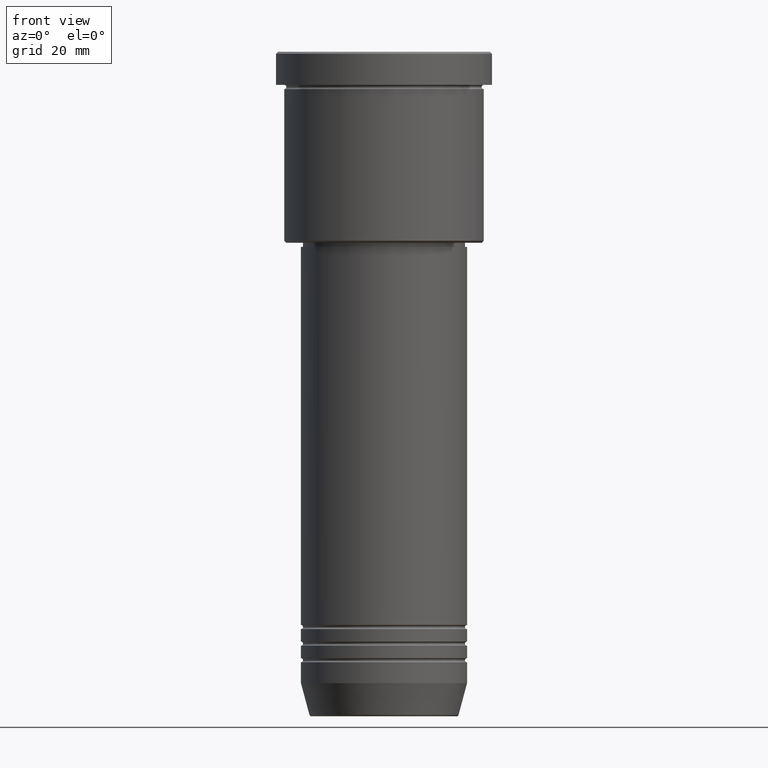
[diagram: clean part render]
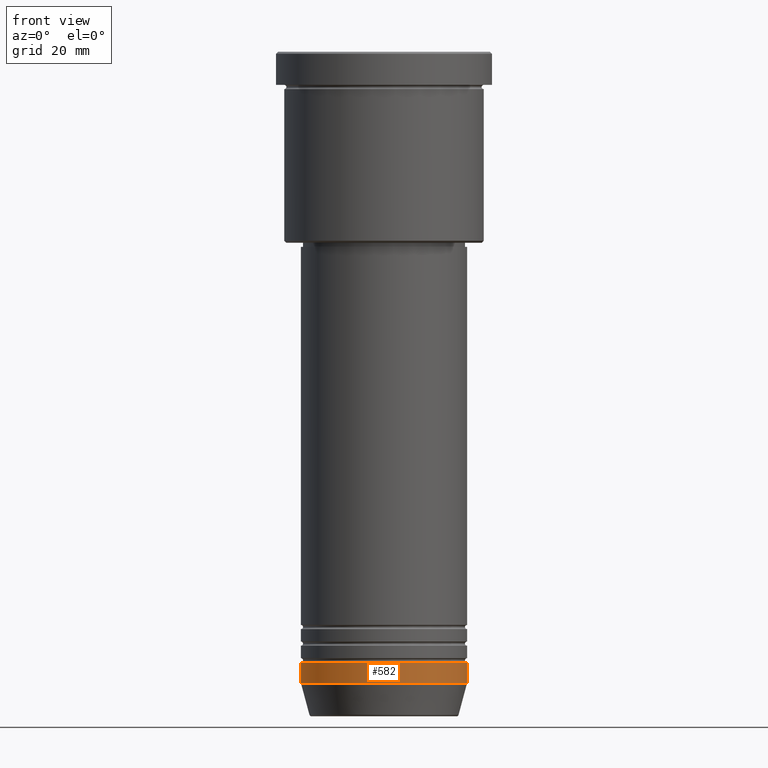
[diagram: same view with one face highlighted and labeled with its STEP entity id]
A machine part, front view. The second image highlights one B-rep face of the part: STEP entity #582.
In plain terms, the highlighted cylindrical surface (partial cylindrical patch) has radius 20 mm, axis along (-0, -0, 1).
Its self-contained STEP definition (entity closure, byte-faithful):
#10 = LINE ( 'NONE', #190, #897 ) ;
#54 = DIRECTION ( 'NONE',  ( -0.000000000000000000, -0.000000000000000000, 1.000000000000000000 ) ) ;
#117 = CARTESIAN_POINT ( 'NONE',  ( -20.00000000000000000, 2.449293598294706513E-15, -147.0000000000000000 ) ) ;
#121 = EDGE_CURVE ( 'NONE', #1133, #398, #955, .T. ) ;
#122 = CARTESIAN_POINT ( 'NONE',  ( 0.000000000000000000, 0.000000000000000000, 0.000000000000000000 ) ) ;
#132 = CYLINDRICAL_SURFACE ( 'NONE', #946, 20.00000000000000355 ) ;
#148 = CARTESIAN_POINT ( 'NONE',  ( 0.000000000000000000, 0.000000000000000000, -152.0000000000000000 ) ) ;
#150 = ORIENTED_EDGE ( 'NONE', *, *, #911, .T. ) ;
#167 = CARTESIAN_POINT ( 'NONE',  ( 20.00000000000000355, 0.000000000000000000, -152.0000000000000000 ) ) ;
#190 = CARTESIAN_POINT ( 'NONE',  ( -20.00000000000000355, 2.449293598294706907E-15, 0.000000000000000000 ) ) ;
#207 = ORIENTED_EDGE ( 'NONE', *, *, #637, .T. ) ;
#258 = AXIS2_PLACEMENT_3D ( 'NONE', #1145, #1134, #868 ) ;
#308 = VERTEX_POINT ( 'NONE', #167 ) ;
#357 = EDGE_CURVE ( 'NONE', #437, #1133, #10, .T. ) ;
#398 = VERTEX_POINT ( 'NONE', #908 ) ;
#437 = VERTEX_POINT ( 'NONE', #817 ) ;
#496 = DIRECTION ( 'NONE',  ( -0.000000000000000000, -0.000000000000000000, 1.000000000000000000 ) ) ;
#506 = ORIENTED_EDGE ( 'NONE', *, *, #121, .F. ) ;
#520 = DIRECTION ( 'NONE',  ( 1.000000000000000000, 0.000000000000000000, 0.000000000000000000 ) ) ;
#537 = CARTESIAN_POINT ( 'NONE',  ( 20.00000000000000355, 0.000000000000000000, 0.000000000000000000 ) ) ;
#540 = ORIENTED_EDGE ( 'NONE', *, *, #357, .F. ) ;
#560 = VECTOR ( 'NONE', #54, 1000.000000000000000 ) ;
#582 = ADVANCED_FACE ( 'NONE', ( #779 ), #132, .T. ) ;
#637 = EDGE_CURVE ( 'NONE', #308, #398, #719, .T. ) ;
#656 = AXIS2_PLACEMENT_3D ( 'NONE', #148, #791, #520 ) ;
#719 = LINE ( 'NONE', #537, #560 ) ;
#737 = DIRECTION ( 'NONE',  ( -0.000000000000000000, -0.000000000000000000, 1.000000000000000000 ) ) ;
#779 = FACE_OUTER_BOUND ( 'NONE', #1146, .T. ) ;
#791 = DIRECTION ( 'NONE',  ( -0.000000000000000000, -0.000000000000000000, 1.000000000000000000 ) ) ;
#817 = CARTESIAN_POINT ( 'NONE',  ( -20.00000000000000355, 2.449293598294706907E-15, -152.0000000000000000 ) ) ;
#848 = DIRECTION ( 'NONE',  ( 1.000000000000000000, 0.000000000000000000, 0.000000000000000000 ) ) ;
#868 = DIRECTION ( 'NONE',  ( 1.000000000000000000, 0.000000000000000000, 0.000000000000000000 ) ) ;
#897 = VECTOR ( 'NONE', #737, 1000.000000000000000 ) ;
#908 = CARTESIAN_POINT ( 'NONE',  ( 20.00000000000000000, 0.000000000000000000, -147.0000000000000000 ) ) ;
#911 = EDGE_CURVE ( 'NONE', #437, #308, #972, .T. ) ;
#946 = AXIS2_PLACEMENT_3D ( 'NONE', #122, #496, #848 ) ;
#955 = CIRCLE ( 'NONE', #258, 20.00000000000000000 ) ;
#972 = CIRCLE ( 'NONE', #656, 20.00000000000000355 ) ;
#1133 = VERTEX_POINT ( 'NONE', #117 ) ;
#1134 = DIRECTION ( 'NONE',  ( -0.000000000000000000, -0.000000000000000000, 1.000000000000000000 ) ) ;
#1145 = CARTESIAN_POINT ( 'NONE',  ( 0.000000000000000000, 0.000000000000000000, -147.0000000000000000 ) ) ;
#1146 = EDGE_LOOP ( 'NONE', ( #540, #150, #207, #506 ) ) ;